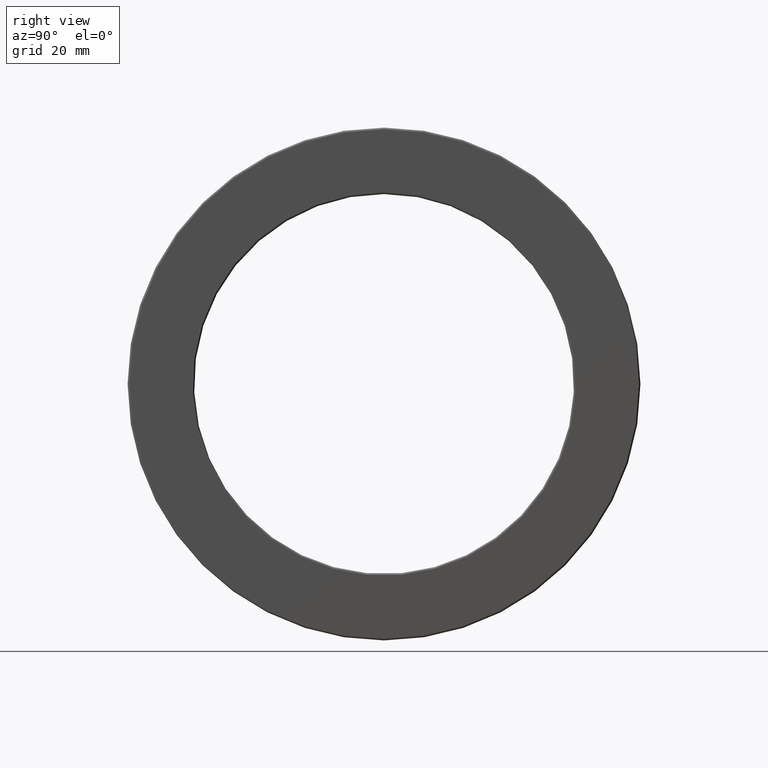
[diagram: clean part render]
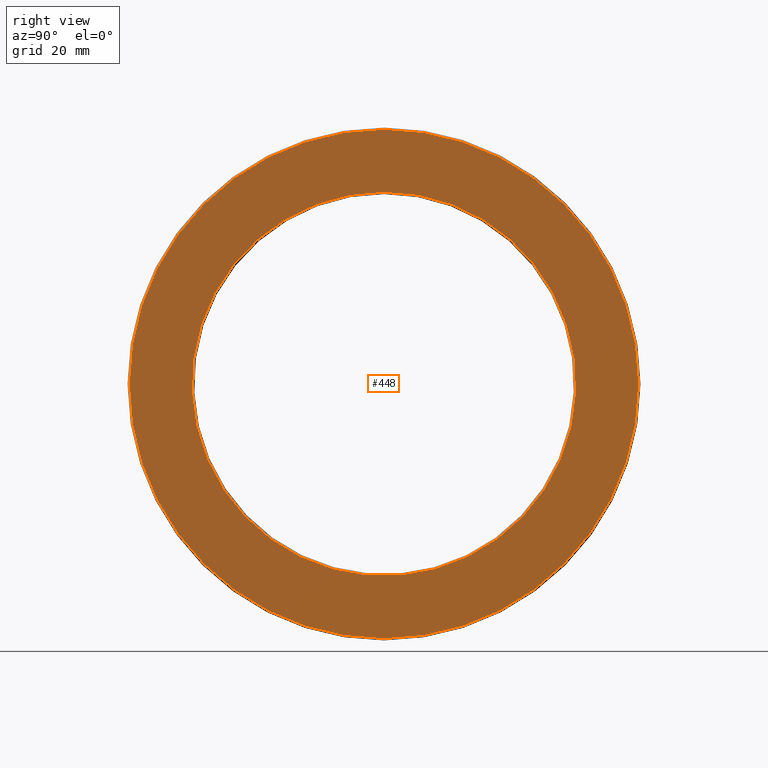
[diagram: same view with one face highlighted and labeled with its STEP entity id]
A machine part, right view. The second image highlights one B-rep face of the part: STEP entity #448.
In plain terms, the highlighted planar face has unit normal (1, 0, 0).
Its self-contained STEP definition (entity closure, byte-faithful):
#66 = ORIENTED_EDGE ( 'NONE', *, *, #69, .F. ) ;
#69 = EDGE_CURVE ( 'NONE', #597, #597, #259, .T. ) ;
#101 = EDGE_LOOP ( 'NONE', ( #400 ) ) ;
#125 = AXIS2_PLACEMENT_3D ( 'NONE', #822, #516, #252 ) ;
#229 = DIRECTION ( 'NONE',  ( 0.0000000000000000000, 0.0000000000000000000, -1.000000000000000000 ) ) ;
#246 = VERTEX_POINT ( 'NONE', #748 ) ;
#252 = DIRECTION ( 'NONE',  ( 0.0000000000000000000, 0.0000000000000000000, 1.000000000000000000 ) ) ;
#259 = CIRCLE ( 'NONE', #439, 2.637500000000000600 ) ;
#267 = FACE_BOUND ( 'NONE', #101, .T. ) ;
#327 = CARTESIAN_POINT ( 'NONE',  ( 0.4919999999999999900, 0.0000000000000000000, 2.637500000000000600 ) ) ;
#349 = DIRECTION ( 'NONE',  ( 1.000000000000000000, 0.0000000000000000000, 0.0000000000000000000 ) ) ;
#370 = AXIS2_PLACEMENT_3D ( 'NONE', #678, #349, #229 ) ;
#400 = ORIENTED_EDGE ( 'NONE', *, *, #613, .T. ) ;
#439 = AXIS2_PLACEMENT_3D ( 'NONE', #472, #722, #608 ) ;
#448 = ADVANCED_FACE ( 'NONE', ( #267, #645 ), #735, .T. ) ;
#472 = CARTESIAN_POINT ( 'NONE',  ( 0.4919999999999999900, 0.0000000000000000000, 0.0000000000000000000 ) ) ;
#516 = DIRECTION ( 'NONE',  ( -1.000000000000000000, -0.0000000000000000000, -0.0000000000000000000 ) ) ;
#540 = EDGE_LOOP ( 'NONE', ( #66 ) ) ;
#597 = VERTEX_POINT ( 'NONE', #327 ) ;
#608 = DIRECTION ( 'NONE',  ( 0.0000000000000000000, 0.0000000000000000000, 1.000000000000000000 ) ) ;
#613 = EDGE_CURVE ( 'NONE', #246, #246, #629, .T. ) ;
#629 = CIRCLE ( 'NONE', #125, 1.988500000000000200 ) ;
#645 = FACE_OUTER_BOUND ( 'NONE', #540, .T. ) ;
#678 = CARTESIAN_POINT ( 'NONE',  ( 0.4920000000000001000, 2.070984919696178000E-016, 0.0000000000000000000 ) ) ;
#722 = DIRECTION ( 'NONE',  ( -1.000000000000000000, -0.0000000000000000000, -0.0000000000000000000 ) ) ;
#735 = PLANE ( 'NONE',  #370 ) ;
#748 = CARTESIAN_POINT ( 'NONE',  ( 0.4920000000000002700, 0.0000000000000000000, 1.988500000000000200 ) ) ;
#822 = CARTESIAN_POINT ( 'NONE',  ( 0.4920000000000002700, 0.0000000000000000000, 0.0000000000000000000 ) ) ;